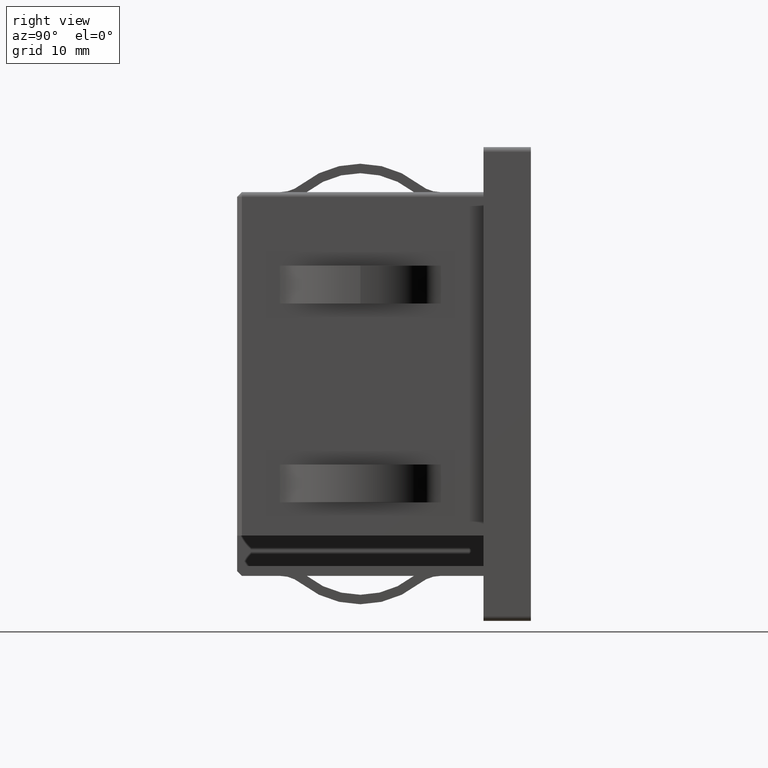
[diagram: clean part render]
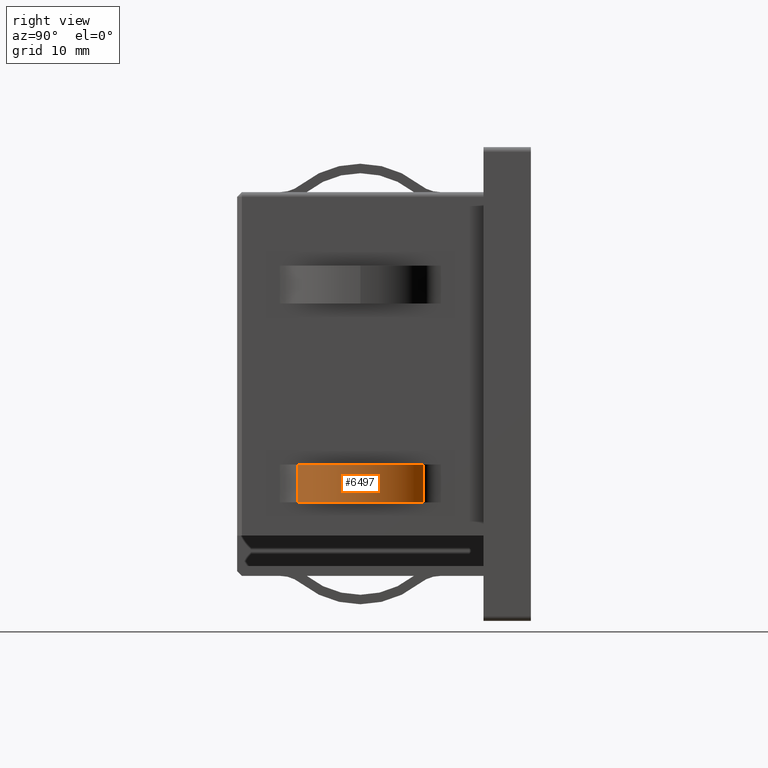
[diagram: same view with one face highlighted and labeled with its STEP entity id]
A machine part, right view. The second image highlights one B-rep face of the part: STEP entity #6497.
In plain terms, the highlighted cylindrical surface (partial cylindrical patch) has radius 9 mm, axis along (-0, -0, -1).
Its self-contained STEP definition (entity closure, byte-faithful):
#555 = VERTEX_POINT ( 'NONE', #15293 ) ;
#658 = EDGE_CURVE ( 'NONE', #555, #1293, #7557, .T. ) ;
#917 = EDGE_CURVE ( 'NONE', #10716, #17220, #14076, .T. ) ;
#1293 = VERTEX_POINT ( 'NONE', #3780 ) ;
#1410 = VECTOR ( 'NONE', #12704, 1000.000000000000000 ) ;
#2303 = CARTESIAN_POINT ( 'NONE',  ( 15.00000000000000500, -13.00000000000000500, -8.500000000000000000 ) ) ;
#2425 = AXIS2_PLACEMENT_3D ( 'NONE', #7168, #8610, #14702 ) ;
#2993 = AXIS2_PLACEMENT_3D ( 'NONE', #7171, #13071, #18698 ) ;
#3211 = LINE ( 'NONE', #12525, #1410 ) ;
#3615 = DIRECTION ( 'NONE',  ( 0.0000000000000000000, -0.0000000000000000000, -1.000000000000000000 ) ) ;
#3780 = CARTESIAN_POINT ( 'NONE',  ( 21.06734250543086500, -19.64735698769007000, -8.500000000000000000 ) ) ;
#3911 = DIRECTION ( 'NONE',  ( -0.0000000000000000000, -0.0000000000000000000, -1.000000000000000000 ) ) ;
#4167 = VECTOR ( 'NONE', #3911, 1000.000000000000000 ) ;
#4888 = CYLINDRICAL_SURFACE ( 'NONE', #2993, 9.000000000000000000 ) ;
#5093 = DIRECTION ( 'NONE',  ( 1.000000000000000000, 0.0000000000000000000, 0.0000000000000000000 ) ) ;
#5529 = EDGE_LOOP ( 'NONE', ( #9446, #16733, #8747, #8810 ) ) ;
#6497 = ADVANCED_FACE ( 'NONE', ( #8752 ), #4888, .T. ) ;
#7168 = CARTESIAN_POINT ( 'NONE',  ( 15.00000000000000500, -13.00000000000000500, -12.50000000000000000 ) ) ;
#7171 = CARTESIAN_POINT ( 'NONE',  ( 15.00000000000000500, -13.00000000000000500, -8.500000000000000000 ) ) ;
#7557 = CIRCLE ( 'NONE', #18256, 9.000000000000000000 ) ;
#8235 = LINE ( 'NONE', #15708, #4167 ) ;
#8610 = DIRECTION ( 'NONE',  ( 0.0000000000000000000, -0.0000000000000000000, -1.000000000000000000 ) ) ;
#8747 = ORIENTED_EDGE ( 'NONE', *, *, #658, .T. ) ;
#8752 = FACE_OUTER_BOUND ( 'NONE', #5529, .T. ) ;
#8810 = ORIENTED_EDGE ( 'NONE', *, *, #11299, .T. ) ;
#9446 = ORIENTED_EDGE ( 'NONE', *, *, #917, .F. ) ;
#10716 = VERTEX_POINT ( 'NONE', #16004 ) ;
#11299 = EDGE_CURVE ( 'NONE', #1293, #17220, #8235, .T. ) ;
#12525 = CARTESIAN_POINT ( 'NONE',  ( 21.06734250543085800, -6.352643012309932200, -8.500000000000000000 ) ) ;
#12704 = DIRECTION ( 'NONE',  ( -0.0000000000000000000, -0.0000000000000000000, -1.000000000000000000 ) ) ;
#13071 = DIRECTION ( 'NONE',  ( -0.0000000000000000000, -0.0000000000000000000, -1.000000000000000000 ) ) ;
#13634 = EDGE_CURVE ( 'NONE', #555, #10716, #3211, .T. ) ;
#14076 = CIRCLE ( 'NONE', #2425, 9.000000000000000000 ) ;
#14702 = DIRECTION ( 'NONE',  ( 1.000000000000000000, 0.0000000000000000000, 0.0000000000000000000 ) ) ;
#15293 = CARTESIAN_POINT ( 'NONE',  ( 21.06734250543085800, -6.352643012309932200, -8.500000000000000000 ) ) ;
#15708 = CARTESIAN_POINT ( 'NONE',  ( 21.06734250543086500, -19.64735698769007000, -8.500000000000000000 ) ) ;
#15743 = CARTESIAN_POINT ( 'NONE',  ( 21.06734250543086500, -19.64735698769007000, -12.50000000000000000 ) ) ;
#16004 = CARTESIAN_POINT ( 'NONE',  ( 21.06734250543085800, -6.352643012309932200, -12.50000000000000000 ) ) ;
#16733 = ORIENTED_EDGE ( 'NONE', *, *, #13634, .F. ) ;
#17220 = VERTEX_POINT ( 'NONE', #15743 ) ;
#18256 = AXIS2_PLACEMENT_3D ( 'NONE', #2303, #3615, #5093 ) ;
#18698 = DIRECTION ( 'NONE',  ( -1.000000000000000000, 0.0000000000000000000, 0.0000000000000000000 ) ) ;